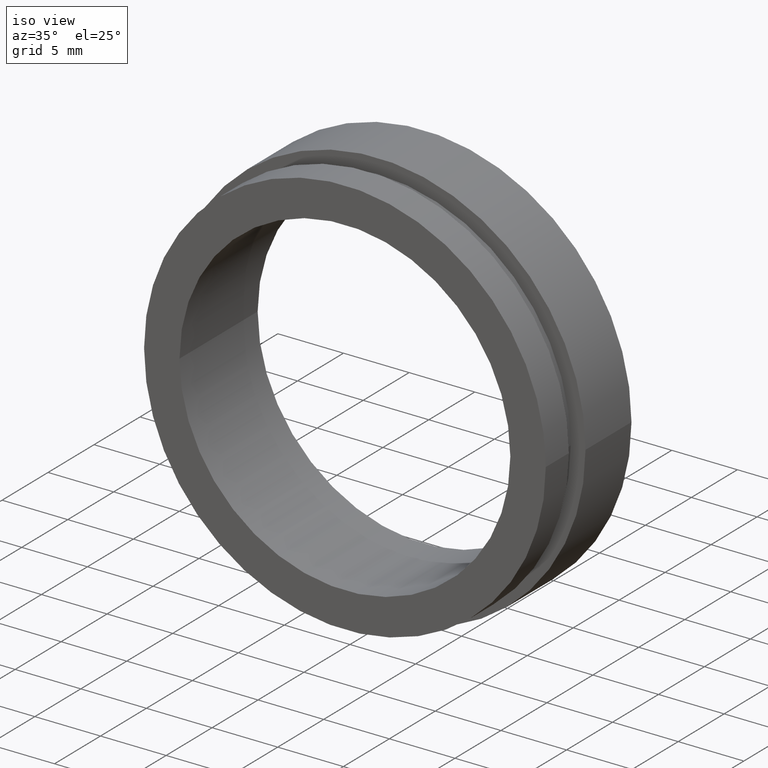
[diagram: clean part render]
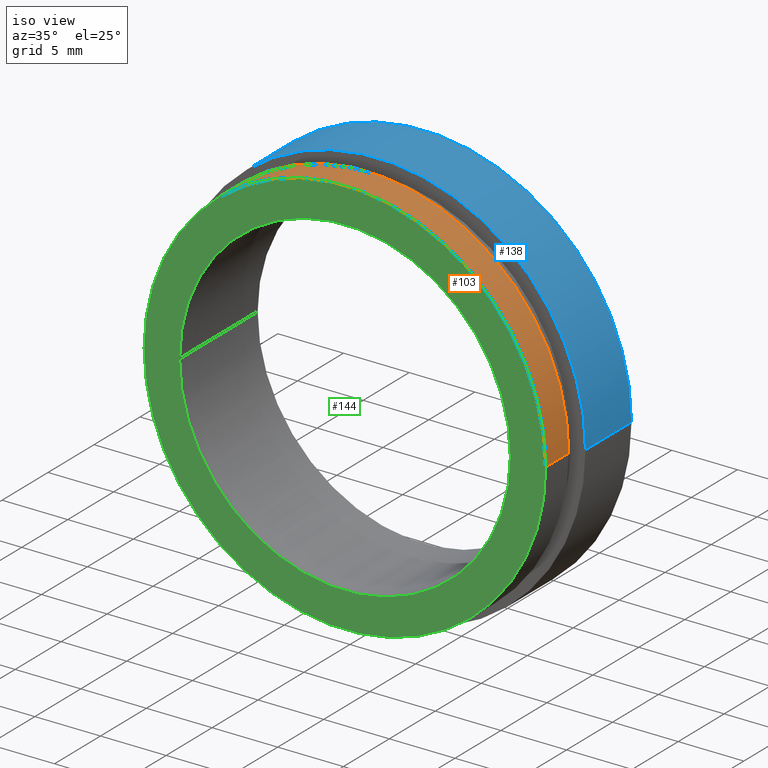
[diagram: same view with three faces highlighted in distinct colors, each labeled with its STEP entity id]
A machine part, iso view with three faces highlighted in distinct colors.
Their STEP definitions:

[orange] entity #103 — the highlighted cylindrical surface (partial cylindrical patch) has radius 15.3 mm, axis along (-0, 1, -0).
#25 = AXIS2_PLACEMENT_3D ( 'NONE', #39, #271, #67 ) ;
#39 = CARTESIAN_POINT ( 'NONE',  ( 1.828579243164447600E-015, 1.954535588880333700, 0.0000000000000000000 ) ) ;
#40 = LINE ( 'NONE', #310, #101 ) ;
#51 = VERTEX_POINT ( 'NONE', #172 ) ;
#57 = LINE ( 'NONE', #307, #199 ) ;
#62 = EDGE_CURVE ( 'NONE', #380, #383, #418, .T. ) ;
#65 = CYLINDRICAL_SURFACE ( 'NONE', #228, 15.30000000000000100 ) ;
#67 = DIRECTION ( 'NONE',  ( -1.000000000000000000, -1.133806193448893400E-016, 0.0000000000000000000 ) ) ;
#68 = CARTESIAN_POINT ( 'NONE',  ( -15.29999999999999900, -0.5454644111196703700, 0.0000000000000000000 ) ) ;
#81 = DIRECTION ( 'NONE',  ( -1.224646799147351000E-016, 1.000000000000000000, -0.0000000000000000000 ) ) ;
#96 = ORIENTED_EDGE ( 'NONE', *, *, #128, .F. ) ;
#101 = VECTOR ( 'NONE', #274, 1000.000000000000000 ) ;
#103 = ADVANCED_FACE ( 'NONE', ( #381 ), #65, .T. ) ;
#128 = EDGE_CURVE ( 'NONE', #380, #167, #40, .T. ) ;
#134 = EDGE_CURVE ( 'NONE', #383, #51, #57, .T. ) ;
#139 = CARTESIAN_POINT ( 'NONE',  ( 2.134740942951285500E-015, -0.5454644111196684800, 0.0000000000000000000 ) ) ;
#154 = DIRECTION ( 'NONE',  ( -1.224646799147351000E-016, 1.000000000000000000, -0.0000000000000000000 ) ) ;
#167 = VERTEX_POINT ( 'NONE', #225 ) ;
#172 = CARTESIAN_POINT ( 'NONE',  ( 15.30000000000000200, 1.954535588880335500, 1.873709602695450400E-015 ) ) ;
#199 = VECTOR ( 'NONE', #154, 1000.000000000000000 ) ;
#225 = CARTESIAN_POINT ( 'NONE',  ( -15.29999999999999900, 1.954535588880332000, 0.0000000000000000000 ) ) ;
#228 = AXIS2_PLACEMENT_3D ( 'NONE', #345, #81, #370 ) ;
#229 = EDGE_CURVE ( 'NONE', #167, #51, #263, .T. ) ;
#241 = ORIENTED_EDGE ( 'NONE', *, *, #134, .T. ) ;
#245 = DIRECTION ( 'NONE',  ( -1.224646799147351000E-016, 1.000000000000000000, -0.0000000000000000000 ) ) ;
#263 = CIRCLE ( 'NONE', #25, 15.30000000000000100 ) ;
#271 = DIRECTION ( 'NONE',  ( -1.224646799147351000E-016, 1.000000000000000000, -0.0000000000000000000 ) ) ;
#274 = DIRECTION ( 'NONE',  ( -1.224646799147351000E-016, 1.000000000000000000, -0.0000000000000000000 ) ) ;
#284 = ORIENTED_EDGE ( 'NONE', *, *, #62, .T. ) ;
#307 = CARTESIAN_POINT ( 'NONE',  ( 15.30000000000000100, 16.88601823708208000, 1.873709602695450400E-015 ) ) ;
#310 = CARTESIAN_POINT ( 'NONE',  ( -15.30000000000000100, 16.88601823708207300, 0.0000000000000000000 ) ) ;
#314 = EDGE_LOOP ( 'NONE', ( #284, #241, #416, #96 ) ) ;
#345 = CARTESIAN_POINT ( 'NONE',  ( 0.0000000000000000000, 16.88601823708207700, 0.0000000000000000000 ) ) ;
#370 = DIRECTION ( 'NONE',  ( -1.000000000000000000, -2.267612386897786900E-016, 0.0000000000000000000 ) ) ;
#380 = VERTEX_POINT ( 'NONE', #68 ) ;
#381 = FACE_OUTER_BOUND ( 'NONE', #314, .T. ) ;
#383 = VERTEX_POINT ( 'NONE', #384 ) ;
#384 = CARTESIAN_POINT ( 'NONE',  ( 15.30000000000000200, -0.5454644111196667000, 1.873709602695450400E-015 ) ) ;
#396 = DIRECTION ( 'NONE',  ( -1.000000000000000000, -1.204669080539449300E-016, 0.0000000000000000000 ) ) ;
#416 = ORIENTED_EDGE ( 'NONE', *, *, #229, .F. ) ;
#418 = CIRCLE ( 'NONE', #434, 15.30000000000000100 ) ;
#434 = AXIS2_PLACEMENT_3D ( 'NONE', #139, #245, #396 ) ;

[blue] entity #138 — the highlighted cylindrical surface (partial cylindrical patch) has radius 15.875 mm, axis along (-0, 1, -0).
#12 = DIRECTION ( 'NONE',  ( -1.224646799147351000E-016, 1.000000000000000000, -0.0000000000000000000 ) ) ;
#23 = CARTESIAN_POINT ( 'NONE',  ( 1.093791163676037000E-015, 7.954535588880333700, 0.0000000000000000000 ) ) ;
#27 = FACE_OUTER_BOUND ( 'NONE', #364, .T. ) ;
#37 = CARTESIAN_POINT ( 'NONE',  ( 15.87500000000000000, 7.954535588880335500, 1.944126793646423200E-015 ) ) ;
#45 = LINE ( 'NONE', #110, #390 ) ;
#46 = ORIENTED_EDGE ( 'NONE', *, *, #118, .T. ) ;
#71 = ORIENTED_EDGE ( 'NONE', *, *, #204, .F. ) ;
#74 = DIRECTION ( 'NONE',  ( -1.000000000000000000, -1.092739197465705500E-016, 0.0000000000000000000 ) ) ;
#79 = VERTEX_POINT ( 'NONE', #362 ) ;
#84 = DIRECTION ( 'NONE',  ( -1.224646799147351000E-016, 1.000000000000000000, -0.0000000000000000000 ) ) ;
#87 = CIRCLE ( 'NONE', #140, 15.87499999999999600 ) ;
#88 = DIRECTION ( 'NONE',  ( -1.000000000000000000, -1.092739197465705300E-016, 0.0000000000000000000 ) ) ;
#110 = CARTESIAN_POINT ( 'NONE',  ( 15.87500000000000000, 16.88601823708208000, 1.944126793646423200E-015 ) ) ;
#115 = DIRECTION ( 'NONE',  ( -1.000000000000000000, -2.185478394931410600E-016, 0.0000000000000000000 ) ) ;
#116 = CARTESIAN_POINT ( 'NONE',  ( -15.87500000000000000, 7.954535588880332000, 0.0000000000000000000 ) ) ;
#118 = EDGE_CURVE ( 'NONE', #79, #194, #87, .T. ) ;
#130 = AXIS2_PLACEMENT_3D ( 'NONE', #303, #12, #115 ) ;
#138 = ADVANCED_FACE ( 'NONE', ( #27 ), #277, .T. ) ;
#140 = AXIS2_PLACEMENT_3D ( 'NONE', #368, #148, #74 ) ;
#143 = ORIENTED_EDGE ( 'NONE', *, *, #191, .F. ) ;
#148 = DIRECTION ( 'NONE',  ( -1.224646799147351000E-016, 1.000000000000000000, -0.0000000000000000000 ) ) ;
#158 = LINE ( 'NONE', #315, #175 ) ;
#159 = VERTEX_POINT ( 'NONE', #116 ) ;
#175 = VECTOR ( 'NONE', #84, 1000.000000000000000 ) ;
#191 = EDGE_CURVE ( 'NONE', #159, #297, #361, .T. ) ;
#194 = VERTEX_POINT ( 'NONE', #354 ) ;
#204 = EDGE_CURVE ( 'NONE', #79, #159, #158, .T. ) ;
#277 = CYLINDRICAL_SURFACE ( 'NONE', #130, 15.87500000000000000 ) ;
#297 = VERTEX_POINT ( 'NONE', #37 ) ;
#303 = CARTESIAN_POINT ( 'NONE',  ( 0.0000000000000000000, 16.88601823708207700, 0.0000000000000000000 ) ) ;
#315 = CARTESIAN_POINT ( 'NONE',  ( -15.87500000000000000, 16.88601823708207300, 0.0000000000000000000 ) ) ;
#342 = EDGE_CURVE ( 'NONE', #194, #297, #45, .T. ) ;
#348 = DIRECTION ( 'NONE',  ( -1.224646799147351000E-016, 1.000000000000000000, -0.0000000000000000000 ) ) ;
#354 = CARTESIAN_POINT ( 'NONE',  ( 15.87499999999999600, 2.954535588880334600, 1.944126793646422800E-015 ) ) ;
#361 = CIRCLE ( 'NONE', #394, 15.87500000000000000 ) ;
#362 = CARTESIAN_POINT ( 'NONE',  ( -15.87499999999999600, 2.954535588880331100, 0.0000000000000000000 ) ) ;
#364 = EDGE_LOOP ( 'NONE', ( #46, #391, #143, #71 ) ) ;
#368 = CARTESIAN_POINT ( 'NONE',  ( 1.706114563249712500E-015, 2.954535588880332900, 0.0000000000000000000 ) ) ;
#390 = VECTOR ( 'NONE', #408, 1000.000000000000000 ) ;
#391 = ORIENTED_EDGE ( 'NONE', *, *, #342, .T. ) ;
#394 = AXIS2_PLACEMENT_3D ( 'NONE', #23, #348, #88 ) ;
#408 = DIRECTION ( 'NONE',  ( -1.224646799147351000E-016, 1.000000000000000000, -0.0000000000000000000 ) ) ;

[green] entity #144 — the highlighted planar face has unit normal (-0, 1, 0).
#18 = DIRECTION ( 'NONE',  ( -1.000000000000000000, -1.204669080539449300E-016, 0.0000000000000000000 ) ) ;
#21 = DIRECTION ( 'NONE',  ( -1.000000000000000000, -1.224646799147351000E-016, 0.0000000000000000000 ) ) ;
#62 = EDGE_CURVE ( 'NONE', #380, #383, #418, .T. ) ;
#68 = CARTESIAN_POINT ( 'NONE',  ( -15.29999999999999900, -0.5454644111196703700, 0.0000000000000000000 ) ) ;
#69 = CARTESIAN_POINT ( 'NONE',  ( 2.134740942951285500E-015, -0.5454644111196684800, 0.0000000000000000000 ) ) ;
#72 = DIRECTION ( 'NONE',  ( -1.224646799147351000E-016, 1.000000000000000000, -0.0000000000000000000 ) ) ;
#77 = VERTEX_POINT ( 'NONE', #325 ) ;
#78 = CARTESIAN_POINT ( 'NONE',  ( 2.134740942951285100E-015, -0.5454644111196650400, 0.0000000000000000000 ) ) ;
#92 = VERTEX_POINT ( 'NONE', #176 ) ;
#95 = FACE_OUTER_BOUND ( 'NONE', #108, .T. ) ;
#108 = EDGE_LOOP ( 'NONE', ( #227, #327 ) ) ;
#133 = ORIENTED_EDGE ( 'NONE', *, *, #330, .T. ) ;
#139 = CARTESIAN_POINT ( 'NONE',  ( 2.134740942951285500E-015, -0.5454644111196684800, 0.0000000000000000000 ) ) ;
#144 = ADVANCED_FACE ( 'NONE', ( #95, #372 ), #422, .F. ) ;
#147 = DIRECTION ( 'NONE',  ( -1.000000000000000000, -1.204669080539449300E-016, 0.0000000000000000000 ) ) ;
#165 = AXIS2_PLACEMENT_3D ( 'NONE', #78, #349, #18 ) ;
#176 = CARTESIAN_POINT ( 'NONE',  ( 12.60000000000000300, -0.5454644111196635900, 1.543054966925665300E-015 ) ) ;
#219 = CARTESIAN_POINT ( 'NONE',  ( 12.60000000000000300, -0.5454644111196645900, 0.0000000000000000000 ) ) ;
#227 = ORIENTED_EDGE ( 'NONE', *, *, #62, .F. ) ;
#245 = DIRECTION ( 'NONE',  ( -1.224646799147351000E-016, 1.000000000000000000, -0.0000000000000000000 ) ) ;
#257 = EDGE_CURVE ( 'NONE', #383, #380, #313, .T. ) ;
#272 = EDGE_LOOP ( 'NONE', ( #133, #289 ) ) ;
#289 = ORIENTED_EDGE ( 'NONE', *, *, #431, .T. ) ;
#295 = CIRCLE ( 'NONE', #165, 12.60000000000000100 ) ;
#301 = CARTESIAN_POINT ( 'NONE',  ( 2.134740942951285100E-015, -0.5454644111196650400, 0.0000000000000000000 ) ) ;
#302 = DIRECTION ( 'NONE',  ( -1.000000000000000000, -1.204669080539449300E-016, 0.0000000000000000000 ) ) ;
#306 = DIRECTION ( 'NONE',  ( -1.224646799147351000E-016, 1.000000000000000000, -0.0000000000000000000 ) ) ;
#313 = CIRCLE ( 'NONE', #425, 15.30000000000000100 ) ;
#317 = DIRECTION ( 'NONE',  ( -1.224646799147351000E-016, 1.000000000000000000, 0.0000000000000000000 ) ) ;
#320 = CIRCLE ( 'NONE', #428, 12.60000000000000100 ) ;
#325 = CARTESIAN_POINT ( 'NONE',  ( -12.60000000000000000, -0.5454644111196665900, 0.0000000000000000000 ) ) ;
#327 = ORIENTED_EDGE ( 'NONE', *, *, #257, .F. ) ;
#330 = EDGE_CURVE ( 'NONE', #77, #92, #320, .T. ) ;
#349 = DIRECTION ( 'NONE',  ( -1.224646799147351000E-016, 1.000000000000000000, -0.0000000000000000000 ) ) ;
#372 = FACE_BOUND ( 'NONE', #272, .T. ) ;
#380 = VERTEX_POINT ( 'NONE', #68 ) ;
#383 = VERTEX_POINT ( 'NONE', #384 ) ;
#384 = CARTESIAN_POINT ( 'NONE',  ( 15.30000000000000200, -0.5454644111196667000, 1.873709602695450400E-015 ) ) ;
#396 = DIRECTION ( 'NONE',  ( -1.000000000000000000, -1.204669080539449300E-016, 0.0000000000000000000 ) ) ;
#397 = AXIS2_PLACEMENT_3D ( 'NONE', #219, #317, #21 ) ;
#418 = CIRCLE ( 'NONE', #434, 15.30000000000000100 ) ;
#422 = PLANE ( 'NONE',  #397 ) ;
#425 = AXIS2_PLACEMENT_3D ( 'NONE', #69, #306, #302 ) ;
#428 = AXIS2_PLACEMENT_3D ( 'NONE', #301, #72, #147 ) ;
#431 = EDGE_CURVE ( 'NONE', #92, #77, #295, .T. ) ;
#434 = AXIS2_PLACEMENT_3D ( 'NONE', #139, #245, #396 ) ;